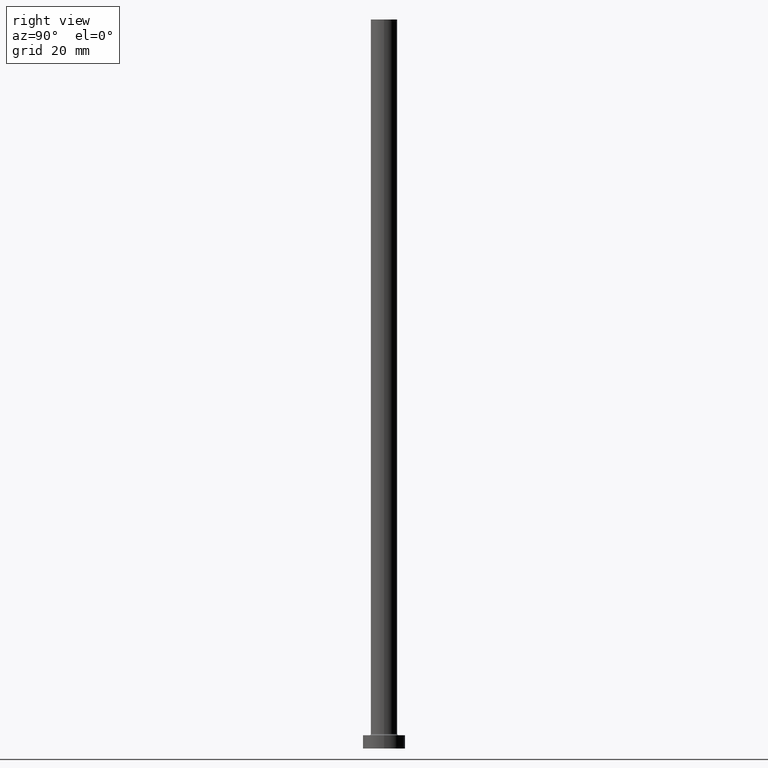
[diagram: clean part render]
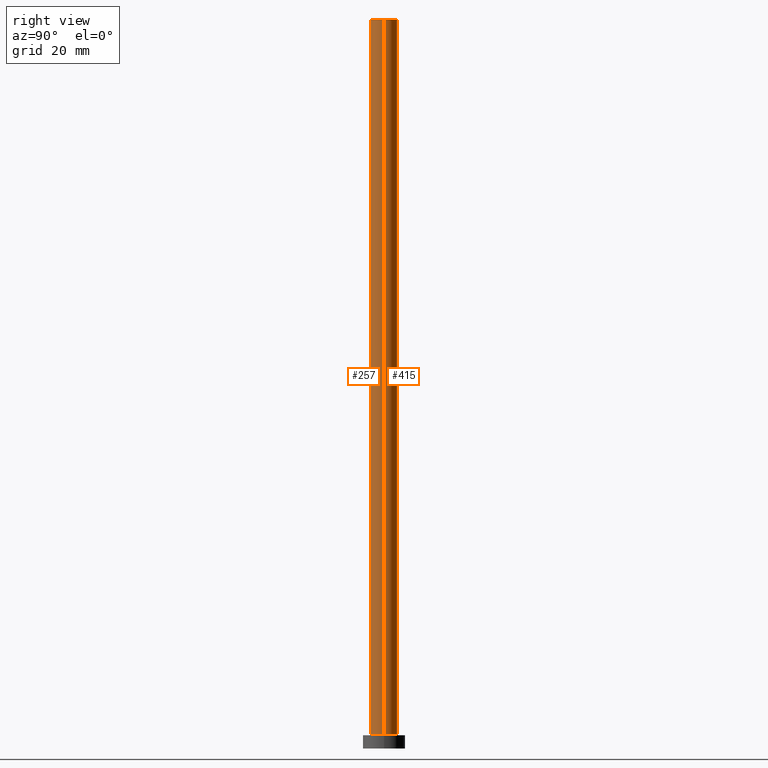
[diagram: same view with one multi-face feature highlighted, each face labeled with its STEP entity id]
A machine part, right view. The highlighted faces form ONE feature: a constant-radius fillet chain: 2 tangent blend faces with common blend radius 5 mm. The faces share edges in the B-rep.
Their STEP definitions:
[1] entity #415 (Cylinder):
#14 = ORIENTED_EDGE ( 'NONE', *, *, #149, .F. ) ;
#20 = CARTESIAN_POINT ( 'NONE',  ( -5.000000000000000000, 0.000000000000000000, 275.0000000000000000 ) ) ;
#37 = VECTOR ( 'NONE', #336, 1000.000000000000000 ) ;
#46 = EDGE_CURVE ( 'NONE', #175, #72, #83, .T. ) ;
#47 = CARTESIAN_POINT ( 'NONE',  ( 5.000000000000000000, 6.123233995736766282E-16, 275.0000000000000000 ) ) ;
#53 = VERTEX_POINT ( 'NONE', #47 ) ;
#62 = DIRECTION ( 'NONE',  ( 0.000000000000000000, 0.000000000000000000, 1.000000000000000000 ) ) ;
#64 = AXIS2_PLACEMENT_3D ( 'NONE', #162, #62, #159 ) ;
#72 = VERTEX_POINT ( 'NONE', #370 ) ;
#78 = DIRECTION ( 'NONE',  ( 1.000000000000000000, 0.000000000000000000, 0.000000000000000000 ) ) ;
#83 = CIRCLE ( 'NONE', #348, 5.000000000000000000 ) ;
#89 = CARTESIAN_POINT ( 'NONE',  ( 0.000000000000000000, 0.000000000000000000, 275.0000000000000000 ) ) ;
#90 = LINE ( 'NONE', #169, #110 ) ;
#110 = VECTOR ( 'NONE', #307, 1000.000000000000000 ) ;
#111 = CARTESIAN_POINT ( 'NONE',  ( 0.000000000000000000, 0.000000000000000000, 5.500000000000005329 ) ) ;
#116 = FACE_OUTER_BOUND ( 'NONE', #433, .T. ) ;
#123 = EDGE_CURVE ( 'NONE', #53, #175, #90, .T. ) ;
#149 = EDGE_CURVE ( 'NONE', #256, #72, #339, .T. ) ;
#151 = ORIENTED_EDGE ( 'NONE', *, *, #355, .F. ) ;
#153 = DIRECTION ( 'NONE',  ( 0.000000000000000000, 0.000000000000000000, 1.000000000000000000 ) ) ;
#159 = DIRECTION ( 'NONE',  ( 1.000000000000000000, 0.000000000000000000, 0.000000000000000000 ) ) ;
#162 = CARTESIAN_POINT ( 'NONE',  ( 0.000000000000000000, 0.000000000000000000, 275.0000000000000000 ) ) ;
#169 = CARTESIAN_POINT ( 'NONE',  ( 5.000000000000000000, 6.123233995736766282E-16, 275.0000000000000000 ) ) ;
#175 = VERTEX_POINT ( 'NONE', #450 ) ;
#199 = CIRCLE ( 'NONE', #64, 5.000000000000000000 ) ;
#256 = VERTEX_POINT ( 'NONE', #385 ) ;
#258 = CYLINDRICAL_SURFACE ( 'NONE', #302, 5.000000000000000000 ) ;
#261 = DIRECTION ( 'NONE',  ( -0.000000000000000000, -0.000000000000000000, -1.000000000000000000 ) ) ;
#302 = AXIS2_PLACEMENT_3D ( 'NONE', #89, #261, #369 ) ;
#307 = DIRECTION ( 'NONE',  ( -0.000000000000000000, -0.000000000000000000, -1.000000000000000000 ) ) ;
#331 = ORIENTED_EDGE ( 'NONE', *, *, #46, .T. ) ;
#336 = DIRECTION ( 'NONE',  ( -0.000000000000000000, -0.000000000000000000, -1.000000000000000000 ) ) ;
#339 = LINE ( 'NONE', #20, #37 ) ;
#348 = AXIS2_PLACEMENT_3D ( 'NONE', #111, #153, #78 ) ;
#355 = EDGE_CURVE ( 'NONE', #53, #256, #199, .T. ) ;
#366 = ORIENTED_EDGE ( 'NONE', *, *, #123, .T. ) ;
#369 = DIRECTION ( 'NONE',  ( -1.000000000000000000, 0.000000000000000000, 0.000000000000000000 ) ) ;
#370 = CARTESIAN_POINT ( 'NONE',  ( -5.000000000000000000, 0.000000000000000000, 5.500000000000005329 ) ) ;
#385 = CARTESIAN_POINT ( 'NONE',  ( -5.000000000000000000, 0.000000000000000000, 275.0000000000000000 ) ) ;
#415 = ADVANCED_FACE ( 'NONE', ( #116 ), #258, .T. ) ;
#433 = EDGE_LOOP ( 'NONE', ( #151, #366, #331, #14 ) ) ;
#450 = CARTESIAN_POINT ( 'NONE',  ( 5.000000000000000000, 6.123233995736766282E-16, 5.500000000000005329 ) ) ;
[2] entity #257 (Cylinder):
#1 = DIRECTION ( 'NONE',  ( 1.000000000000000000, 0.000000000000000000, 0.000000000000000000 ) ) ;
#5 = DIRECTION ( 'NONE',  ( 0.000000000000000000, 0.000000000000000000, 1.000000000000000000 ) ) ;
#9 = DIRECTION ( 'NONE',  ( -0.000000000000000000, -0.000000000000000000, -1.000000000000000000 ) ) ;
#20 = CARTESIAN_POINT ( 'NONE',  ( -5.000000000000000000, 0.000000000000000000, 275.0000000000000000 ) ) ;
#31 = EDGE_CURVE ( 'NONE', #256, #53, #424, .T. ) ;
#37 = VECTOR ( 'NONE', #336, 1000.000000000000000 ) ;
#47 = CARTESIAN_POINT ( 'NONE',  ( 5.000000000000000000, 6.123233995736766282E-16, 275.0000000000000000 ) ) ;
#53 = VERTEX_POINT ( 'NONE', #47 ) ;
#68 = AXIS2_PLACEMENT_3D ( 'NONE', #286, #5, #395 ) ;
#72 = VERTEX_POINT ( 'NONE', #370 ) ;
#90 = LINE ( 'NONE', #169, #110 ) ;
#99 = CYLINDRICAL_SURFACE ( 'NONE', #373, 5.000000000000000000 ) ;
#103 = CARTESIAN_POINT ( 'NONE',  ( 0.000000000000000000, 0.000000000000000000, 275.0000000000000000 ) ) ;
#104 = EDGE_LOOP ( 'NONE', ( #439, #435, #436, #359 ) ) ;
#110 = VECTOR ( 'NONE', #307, 1000.000000000000000 ) ;
#123 = EDGE_CURVE ( 'NONE', #53, #175, #90, .T. ) ;
#139 = FACE_OUTER_BOUND ( 'NONE', #104, .T. ) ;
#149 = EDGE_CURVE ( 'NONE', #256, #72, #339, .T. ) ;
#169 = CARTESIAN_POINT ( 'NONE',  ( 5.000000000000000000, 6.123233995736766282E-16, 275.0000000000000000 ) ) ;
#175 = VERTEX_POINT ( 'NONE', #450 ) ;
#256 = VERTEX_POINT ( 'NONE', #385 ) ;
#257 = ADVANCED_FACE ( 'NONE', ( #139 ), #99, .T. ) ;
#277 = EDGE_CURVE ( 'NONE', #72, #175, #431, .T. ) ;
#286 = CARTESIAN_POINT ( 'NONE',  ( 0.000000000000000000, 0.000000000000000000, 275.0000000000000000 ) ) ;
#307 = DIRECTION ( 'NONE',  ( -0.000000000000000000, -0.000000000000000000, -1.000000000000000000 ) ) ;
#310 = AXIS2_PLACEMENT_3D ( 'NONE', #358, #429, #1 ) ;
#336 = DIRECTION ( 'NONE',  ( -0.000000000000000000, -0.000000000000000000, -1.000000000000000000 ) ) ;
#339 = LINE ( 'NONE', #20, #37 ) ;
#358 = CARTESIAN_POINT ( 'NONE',  ( 0.000000000000000000, 0.000000000000000000, 5.500000000000005329 ) ) ;
#359 = ORIENTED_EDGE ( 'NONE', *, *, #277, .T. ) ;
#370 = CARTESIAN_POINT ( 'NONE',  ( -5.000000000000000000, 0.000000000000000000, 5.500000000000005329 ) ) ;
#373 = AXIS2_PLACEMENT_3D ( 'NONE', #103, #9, #437 ) ;
#385 = CARTESIAN_POINT ( 'NONE',  ( -5.000000000000000000, 0.000000000000000000, 275.0000000000000000 ) ) ;
#395 = DIRECTION ( 'NONE',  ( 1.000000000000000000, 0.000000000000000000, 0.000000000000000000 ) ) ;
#424 = CIRCLE ( 'NONE', #68, 5.000000000000000000 ) ;
#429 = DIRECTION ( 'NONE',  ( 0.000000000000000000, 0.000000000000000000, 1.000000000000000000 ) ) ;
#431 = CIRCLE ( 'NONE', #310, 5.000000000000000000 ) ;
#435 = ORIENTED_EDGE ( 'NONE', *, *, #31, .F. ) ;
#436 = ORIENTED_EDGE ( 'NONE', *, *, #149, .T. ) ;
#437 = DIRECTION ( 'NONE',  ( -1.000000000000000000, 0.000000000000000000, 0.000000000000000000 ) ) ;
#439 = ORIENTED_EDGE ( 'NONE', *, *, #123, .F. ) ;
#450 = CARTESIAN_POINT ( 'NONE',  ( 5.000000000000000000, 6.123233995736766282E-16, 5.500000000000005329 ) ) ;